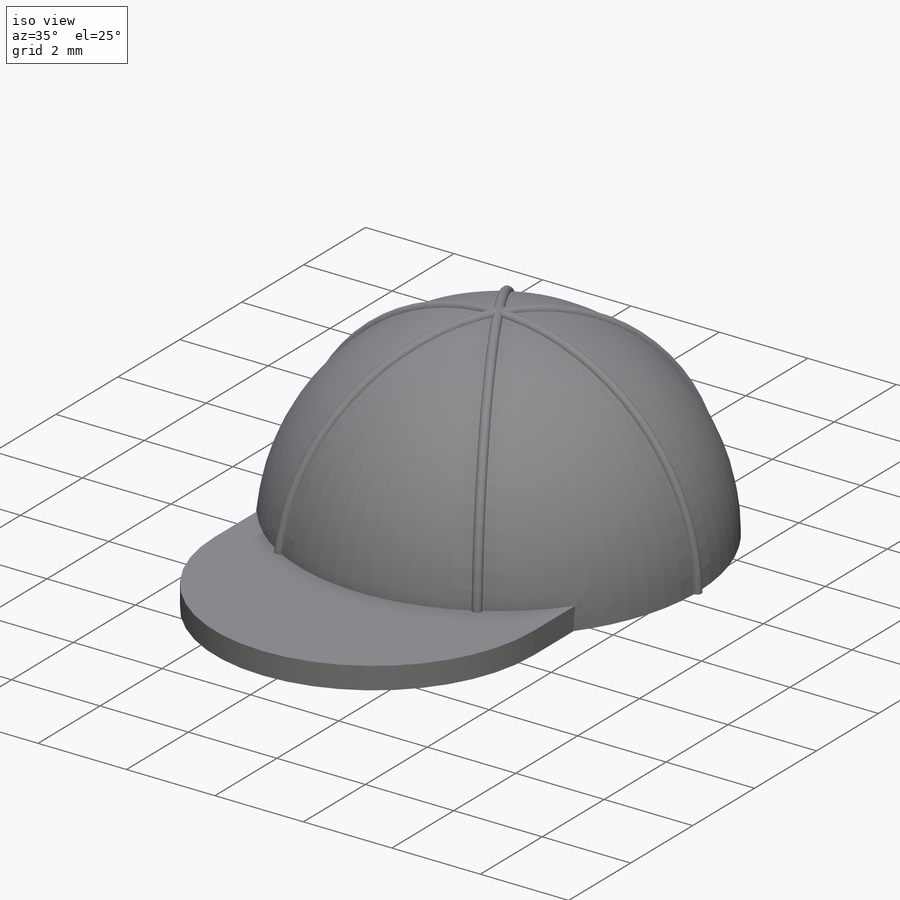
[diagram: iso view]
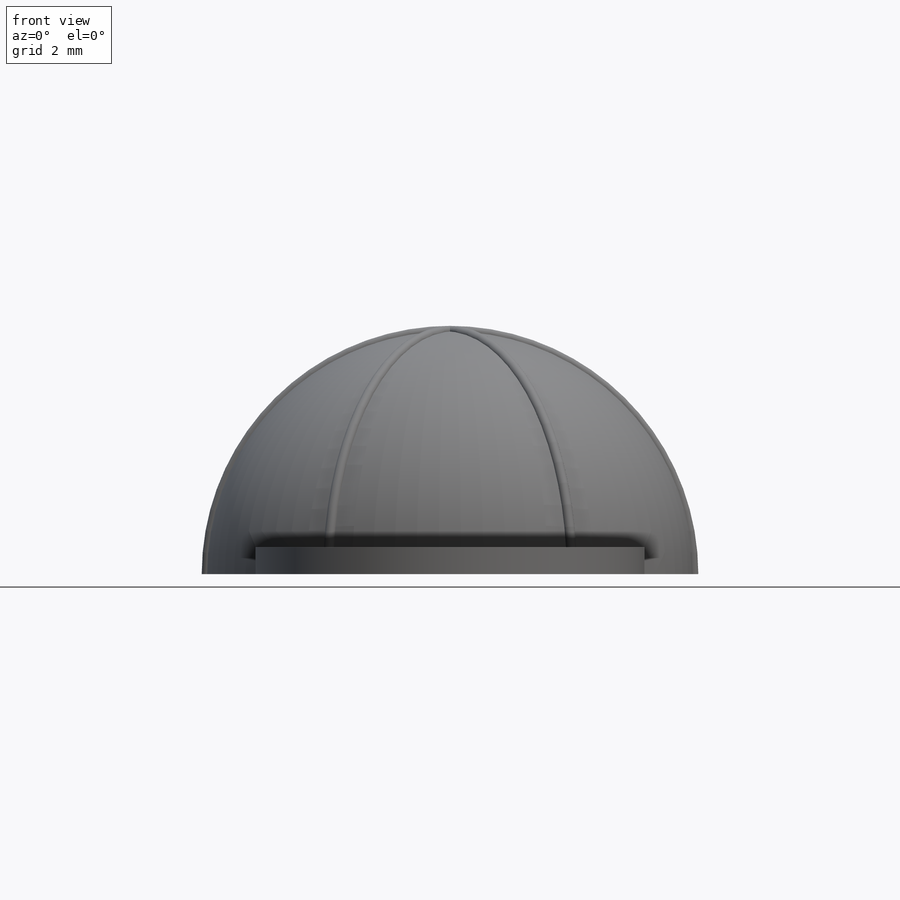
[diagram: front view]
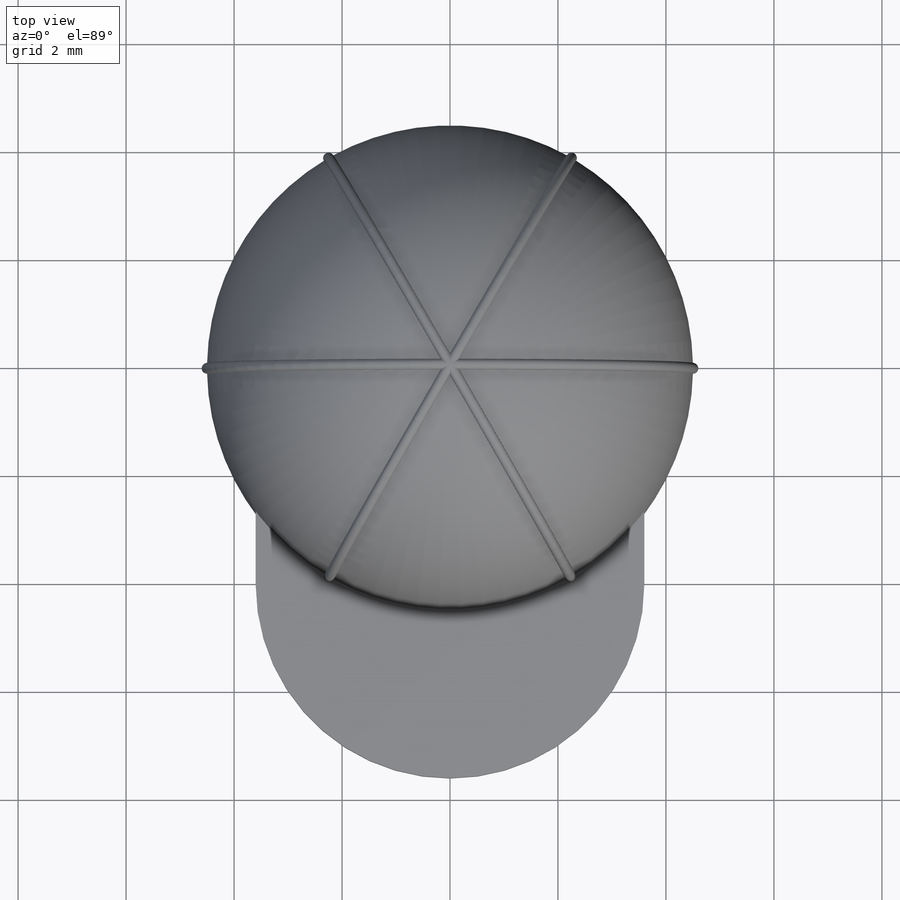
[diagram: top view]
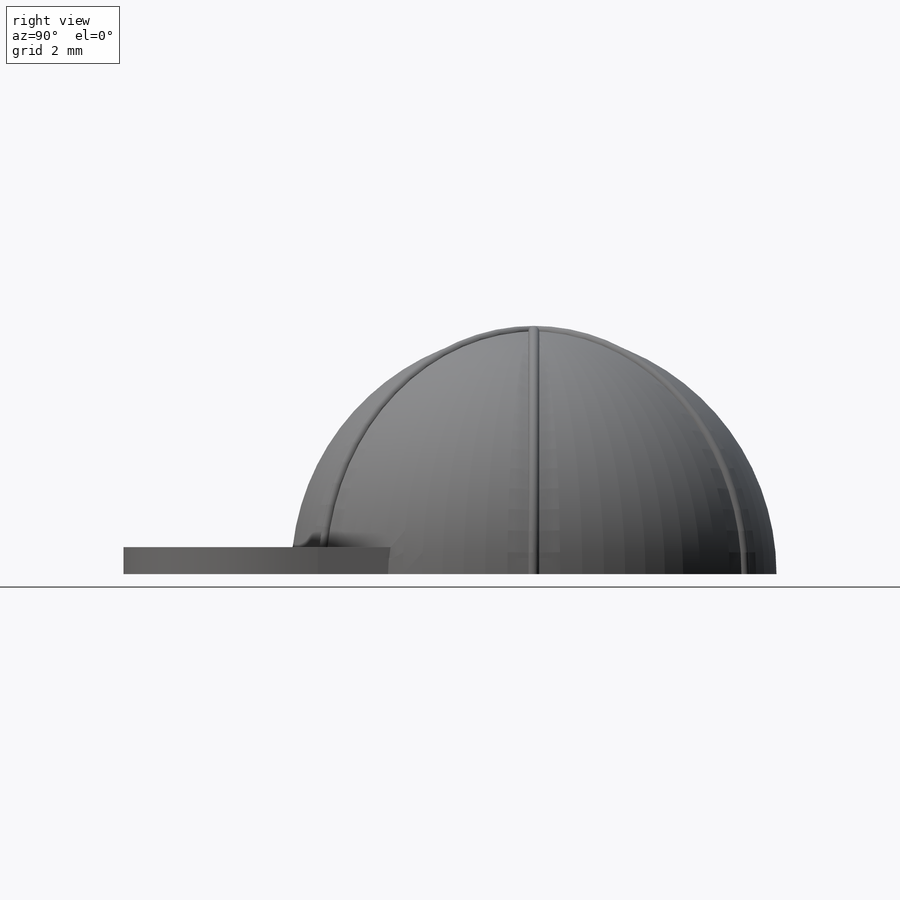
[diagram: right view]
SOLIDWORKS PART (.sldprt)
format: sldprt  version: not decoded by parser v0  size: 330,240 bytes
history: native  units: mm
features: sketch x3, material x1, extrude x1, revolve x1, pattern_circular x1 + 1 further entry (+14 scaffold rows collapsed)
feature tree (22):
  scaffold x14  (default folders/planes/origin — collapsed)
  material  "Material <not specified>"
  "Design Table"
  sketch  "Sketch1"  dims[HatRad=4.0mm D1=360.0deg D4=10.0mm]
  sketch  "Sketch2"  dims[D1=3.6mm]
  extrude  "Boss-Extrude1"  [1 undecoded]
  sketch  "Sketch3"  dims[D1=0.2mm]
  revolve  "Revolve1"  Angle=90deg
  pattern_circular  "CirPattern1"  Count=6 Angle=360deg #=6
decode coverage: 5 of 6 modeling features carry decoded parameters; 1 rows unclassified (native names shown)
note: 1 parameter value undecoded
note: suppression state not decoded; provenance and decode notes live in map.json
